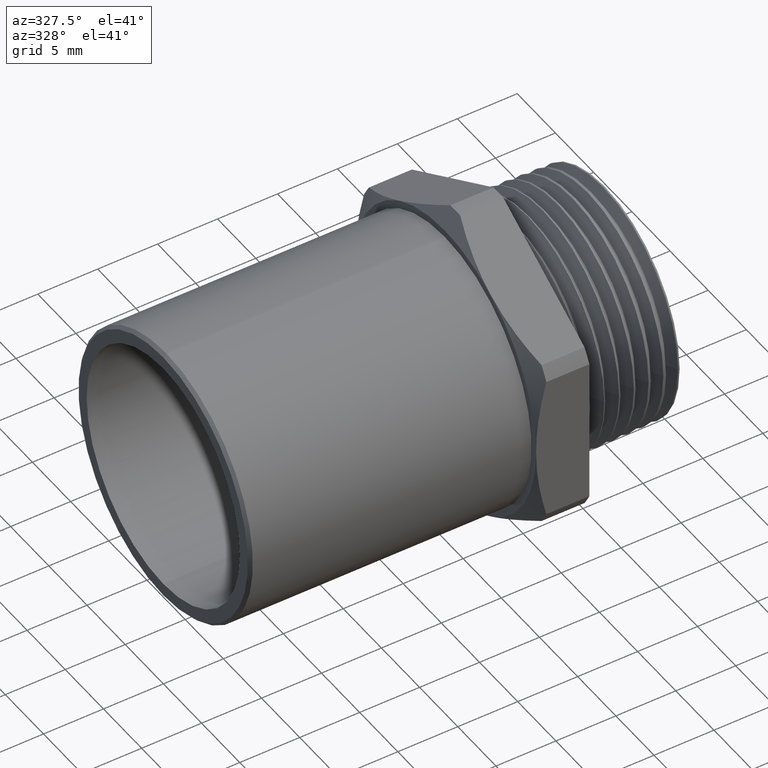
[diagram: clean part render]
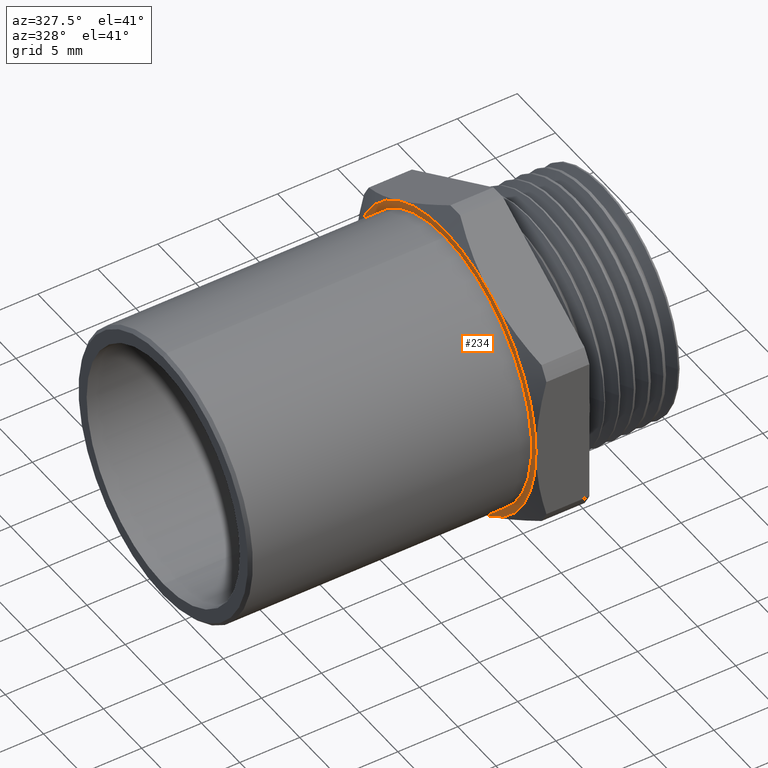
[diagram: same view with one face highlighted and labeled with its STEP entity id]
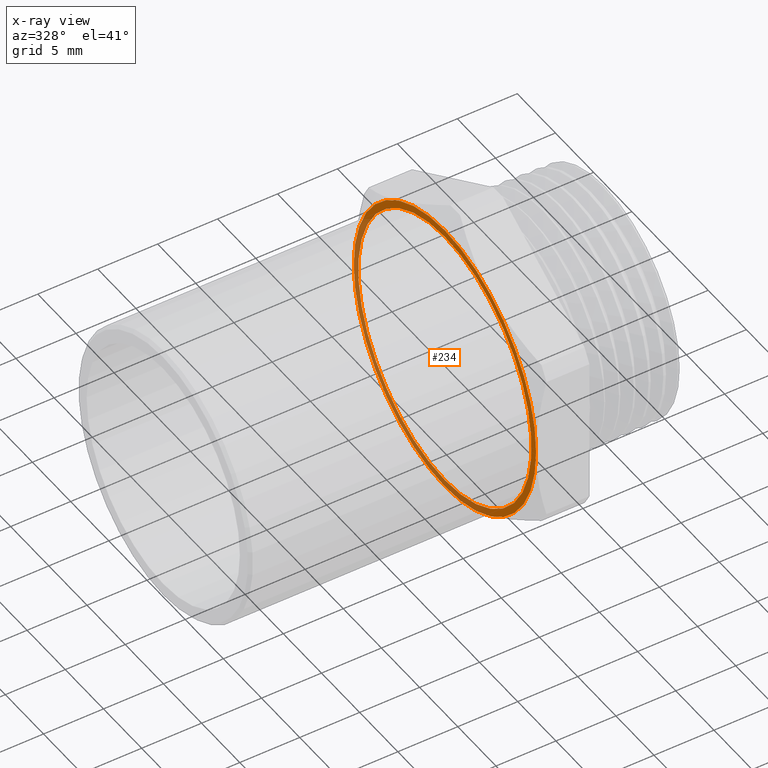
[diagram: x-ray of the same camera — body ghosted, the highlighted face saturated]
A machine part, auxiliary view. The second image highlights one B-rep face of the part: STEP entity #234.
The next image is the same camera in x-ray: the body ghosted, the highlighted face saturated — about 41% of this face is hidden behind the body in this view.
In plain terms, the highlighted planar face has unit normal (1, 0, 0).
Its self-contained STEP definition (entity closure, byte-faithful):
#219 = EDGE_CURVE ( 'NONE', #246, #220, #771, .T. ) ;
#220 = VERTEX_POINT ( 'NONE', #833 ) ;
#221 = ORIENTED_EDGE ( 'NONE', *, *, #222, .T. ) ;
#222 = EDGE_CURVE ( 'NONE', #220, #223, #832, .T. ) ;
#223 = VERTEX_POINT ( 'NONE', #827 ) ;
#224 = ORIENTED_EDGE ( 'NONE', *, *, #225, .T. ) ;
#225 = EDGE_CURVE ( 'NONE', #223, #2092, #825, .T. ) ;
#226 = ORIENTED_EDGE ( 'NONE', *, *, #2099, .T. ) ;
#227 = ORIENTED_EDGE ( 'NONE', *, *, #228, .T. ) ;
#228 = EDGE_CURVE ( 'NONE', #2088, #242, #820, .T. ) ;
#234 = ADVANCED_FACE ( 'NONE', ( #805, #804 ), #801, .F. ) ;
#235 = EDGE_LOOP ( 'NONE', ( #236, #237 ) ) ;
#236 = ORIENTED_EDGE ( 'NONE', *, *, #2179, .F. ) ;
#237 = ORIENTED_EDGE ( 'NONE', *, *, #238, .F. ) ;
#238 = EDGE_CURVE ( 'NONE', #2178, #1972, #862, .T. ) ;
#239 = EDGE_LOOP ( 'NONE', ( #240, #244, #301, #221, #224, #226, #227 ) ) ;
#240 = ORIENTED_EDGE ( 'NONE', *, *, #241, .T. ) ;
#241 = EDGE_CURVE ( 'NONE', #242, #243, #857, .T. ) ;
#242 = VERTEX_POINT ( 'NONE', #852 ) ;
#243 = VERTEX_POINT ( 'NONE', #851 ) ;
#244 = ORIENTED_EDGE ( 'NONE', *, *, #245, .T. ) ;
#245 = EDGE_CURVE ( 'NONE', #243, #246, #850, .T. ) ;
#246 = VERTEX_POINT ( 'NONE', #845 ) ;
#301 = ORIENTED_EDGE ( 'NONE', *, *, #219, .T. ) ;
#563 = CARTESIAN_POINT ( 'NONE',  ( -0.5249999999999999100, 0.5287499999999999400, 0.0000000000000000000 ) ) ;
#768 = DIRECTION ( 'NONE',  ( 0.0000000000000000000, 0.0000000000000000000, 1.000000000000000000 ) ) ;
#769 = DIRECTION ( 'NONE',  ( -1.000000000000000000, 0.0000000000000000000, 0.0000000000000000000 ) ) ;
#770 = AXIS2_PLACEMENT_3D ( 'NONE', #776, #769, #768 ) ;
#771 = CIRCLE ( 'NONE', #770, 0.4699999999999999200 ) ;
#776 = CARTESIAN_POINT ( 'NONE',  ( -0.5249999999999999100, 0.0000000000000000000, 0.0000000000000000000 ) ) ;
#800 = AXIS2_PLACEMENT_3D ( 'NONE', #563, #1956, #1934 ) ;
#801 = PLANE ( 'NONE',  #800 ) ;
#804 = FACE_OUTER_BOUND ( 'NONE', #239, .T. ) ;
#805 = FACE_BOUND ( 'NONE', #235, .T. ) ;
#817 = DIRECTION ( 'NONE',  ( 0.0000000000000000000, 0.0000000000000000000, 1.000000000000000000 ) ) ;
#818 = DIRECTION ( 'NONE',  ( -1.000000000000000000, 0.0000000000000000000, 0.0000000000000000000 ) ) ;
#819 = AXIS2_PLACEMENT_3D ( 'NONE', #826, #818, #817 ) ;
#820 = CIRCLE ( 'NONE', #819, 0.4699999999999999200 ) ;
#821 = DIRECTION ( 'NONE',  ( 0.0000000000000000000, 0.0000000000000000000, 1.000000000000000000 ) ) ;
#822 = DIRECTION ( 'NONE',  ( -1.000000000000000000, 0.0000000000000000000, 0.0000000000000000000 ) ) ;
#823 = CARTESIAN_POINT ( 'NONE',  ( -0.5249999999999999100, 0.0000000000000000000, 0.0000000000000000000 ) ) ;
#824 = AXIS2_PLACEMENT_3D ( 'NONE', #823, #822, #821 ) ;
#825 = CIRCLE ( 'NONE', #824, 0.4699999999999999200 ) ;
#826 = CARTESIAN_POINT ( 'NONE',  ( -0.5249999999999999100, 0.0000000000000000000, 0.0000000000000000000 ) ) ;
#827 = CARTESIAN_POINT ( 'NONE',  ( -0.5249999999999999100, -0.2350000000000000400, 0.4070319397786862400 ) ) ;
#828 = DIRECTION ( 'NONE',  ( 0.0000000000000000000, 0.0000000000000000000, 1.000000000000000000 ) ) ;
#829 = DIRECTION ( 'NONE',  ( -1.000000000000000000, 0.0000000000000000000, 0.0000000000000000000 ) ) ;
#830 = CARTESIAN_POINT ( 'NONE',  ( -0.5249999999999999100, 0.0000000000000000000, 0.0000000000000000000 ) ) ;
#831 = AXIS2_PLACEMENT_3D ( 'NONE', #830, #829, #828 ) ;
#832 = CIRCLE ( 'NONE', #831, 0.4699999999999999200 ) ;
#833 = CARTESIAN_POINT ( 'NONE',  ( -0.5249999999999999100, -0.4700000000000002500, 0.0000000000000000000 ) ) ;
#845 = CARTESIAN_POINT ( 'NONE',  ( -0.5249999999999999100, -0.2350000000000001000, -0.4070319397786860100 ) ) ;
#846 = DIRECTION ( 'NONE',  ( 0.0000000000000000000, 0.0000000000000000000, 1.000000000000000000 ) ) ;
#847 = DIRECTION ( 'NONE',  ( -1.000000000000000000, 0.0000000000000000000, 0.0000000000000000000 ) ) ;
#848 = CARTESIAN_POINT ( 'NONE',  ( -0.5249999999999999100, 0.0000000000000000000, 0.0000000000000000000 ) ) ;
#849 = AXIS2_PLACEMENT_3D ( 'NONE', #848, #847, #846 ) ;
#850 = CIRCLE ( 'NONE', #849, 0.4699999999999999200 ) ;
#851 = CARTESIAN_POINT ( 'NONE',  ( -0.5249999999999999100, 0.2350000000000001800, -0.4070319397786864600 ) ) ;
#852 = CARTESIAN_POINT ( 'NONE',  ( -0.5249999999999999100, 0.4700000000000005300, 0.0000000000000000000 ) ) ;
#853 = DIRECTION ( 'NONE',  ( 0.0000000000000000000, 0.0000000000000000000, 1.000000000000000000 ) ) ;
#854 = DIRECTION ( 'NONE',  ( -1.000000000000000000, 0.0000000000000000000, 0.0000000000000000000 ) ) ;
#855 = CARTESIAN_POINT ( 'NONE',  ( -0.5249999999999999100, 0.0000000000000000000, 0.0000000000000000000 ) ) ;
#856 = AXIS2_PLACEMENT_3D ( 'NONE', #855, #854, #853 ) ;
#857 = CIRCLE ( 'NONE', #856, 0.4699999999999999200 ) ;
#858 = DIRECTION ( 'NONE',  ( 0.0000000000000000000, 0.0000000000000000000, 1.000000000000000000 ) ) ;
#859 = DIRECTION ( 'NONE',  ( -1.000000000000000000, 0.0000000000000000000, 0.0000000000000000000 ) ) ;
#860 = CARTESIAN_POINT ( 'NONE',  ( -0.5249999999999999100, 0.0000000000000000000, 0.0000000000000000000 ) ) ;
#861 = AXIS2_PLACEMENT_3D ( 'NONE', #860, #859, #858 ) ;
#862 = CIRCLE ( 'NONE', #861, 0.4465000000000001200 ) ;
#1152 = CARTESIAN_POINT ( 'NONE',  ( -0.5249999999999999100, 0.0000000000000000000, 0.4465000000000001200 ) ) ;
#1285 = CARTESIAN_POINT ( 'NONE',  ( -0.5249999999999999100, 0.0000000000000000000, 0.4699999999999999200 ) ) ;
#1303 = CARTESIAN_POINT ( 'NONE',  ( -0.5249999999999999100, 0.2350000000000002400, 0.4070319397786864600 ) ) ;
#1338 = DIRECTION ( 'NONE',  ( 0.0000000000000000000, 0.0000000000000000000, 1.000000000000000000 ) ) ;
#1339 = DIRECTION ( 'NONE',  ( -1.000000000000000000, 0.0000000000000000000, 0.0000000000000000000 ) ) ;
#1340 = CARTESIAN_POINT ( 'NONE',  ( -0.5249999999999999100, 0.0000000000000000000, 0.0000000000000000000 ) ) ;
#1341 = AXIS2_PLACEMENT_3D ( 'NONE', #1340, #1339, #1338 ) ;
#1342 = CIRCLE ( 'NONE', #1341, 0.4699999999999999200 ) ;
#1408 = DIRECTION ( 'NONE',  ( 0.0000000000000000000, 0.0000000000000000000, 1.000000000000000000 ) ) ;
#1409 = DIRECTION ( 'NONE',  ( -1.000000000000000000, 0.0000000000000000000, 0.0000000000000000000 ) ) ;
#1410 = CARTESIAN_POINT ( 'NONE',  ( -0.5249999999999999100, 0.0000000000000000000, 0.0000000000000000000 ) ) ;
#1411 = AXIS2_PLACEMENT_3D ( 'NONE', #1410, #1409, #1408 ) ;
#1412 = CIRCLE ( 'NONE', #1411, 0.4465000000000001200 ) ;
#1414 = CARTESIAN_POINT ( 'NONE',  ( -0.5249999999999999100, 5.468047958192934100E-017, -0.4465000000000000600 ) ) ;
#1934 = DIRECTION ( 'NONE',  ( 0.0000000000000000000, 0.0000000000000000000, -1.000000000000000000 ) ) ;
#1956 = DIRECTION ( 'NONE',  ( 1.000000000000000000, 0.0000000000000000000, 0.0000000000000000000 ) ) ;
#1972 = VERTEX_POINT ( 'NONE', #1152 ) ;
#2088 = VERTEX_POINT ( 'NONE', #1303 ) ;
#2092 = VERTEX_POINT ( 'NONE', #1285 ) ;
#2099 = EDGE_CURVE ( 'NONE', #2092, #2088, #1342, .T. ) ;
#2178 = VERTEX_POINT ( 'NONE', #1414 ) ;
#2179 = EDGE_CURVE ( 'NONE', #1972, #2178, #1412, .T. ) ;